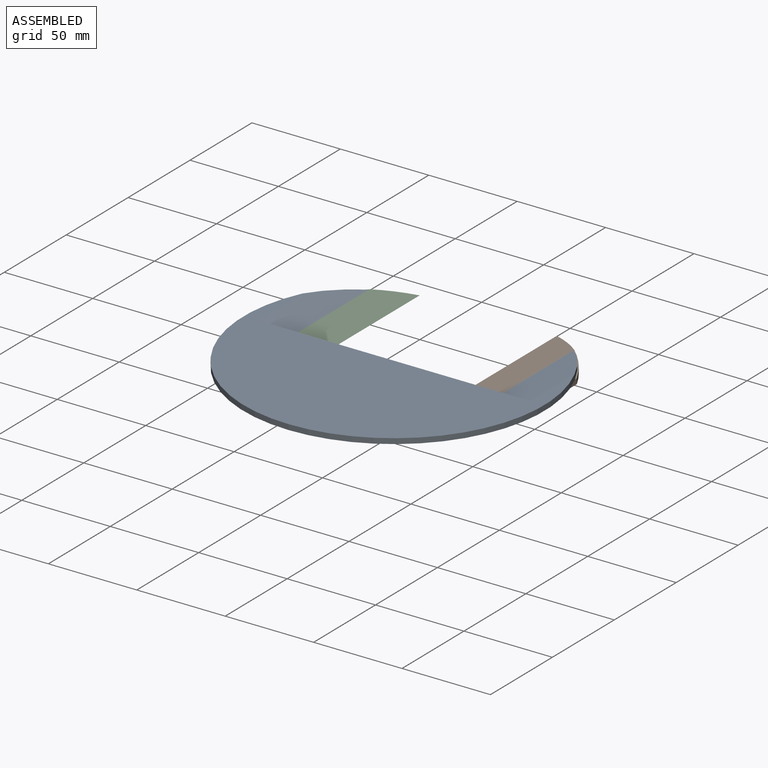
[diagram: assembled view]
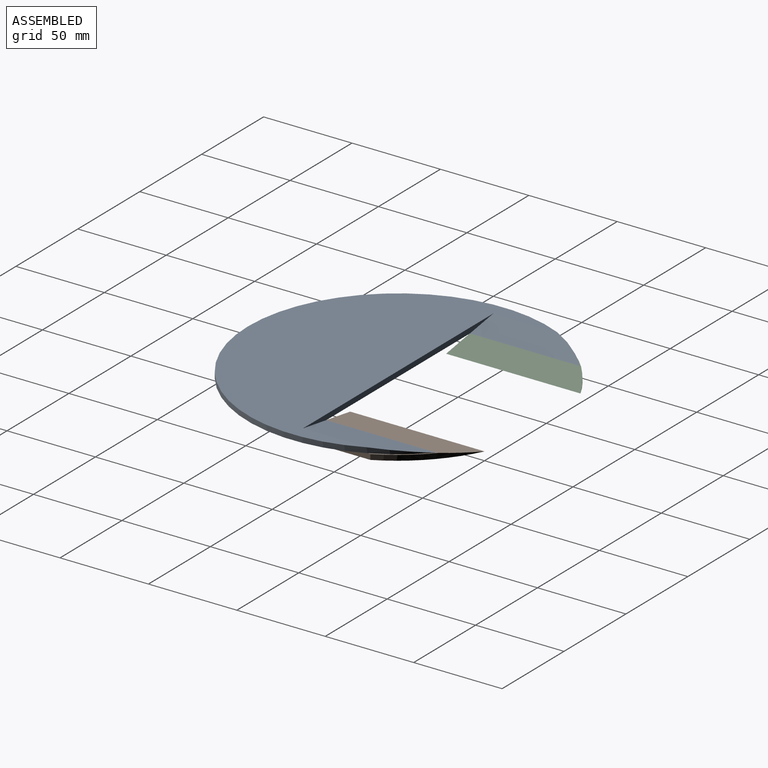
[diagram: assembled view, second angle]
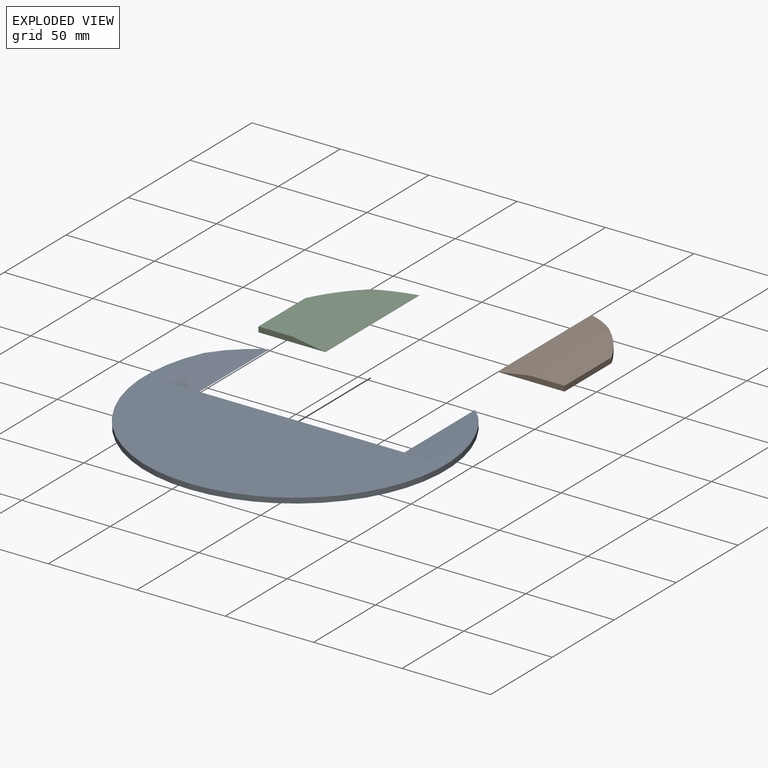
[diagram: exploded view]
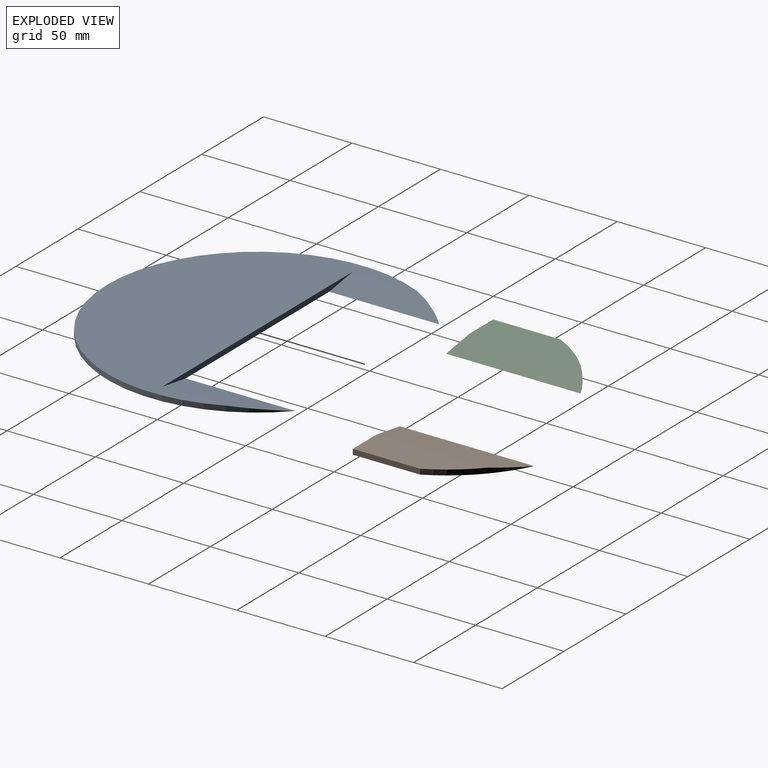
[diagram: exploded view, second angle]
ASSEMBLY  parts=3 mates=4
PART A: 6 faces, bbox 170x147.1x3 mm
  f0: cylinder r=85mm len=170mm, axis (0,0,-1), area 1130.3mm2, adj f1,f2,f4,f5
  f1: plane 170x121mm, normal (0,0,1), area 11736.8mm2, adj f0,f3,f4,f5
  f2: plane 170x147.14mm, normal (0,0,-1), area 13668.3mm2, adj f0,f3,f4,f5
  f3: plane 154x3mm, normal (0,1,0), area 405mm2, adj f1,f2,f4,f5
  f4: plane 62.14x19mm, normal (-0.16,0,0.99), area 977.7mm2, adj f0,f1,f2,f3
  f5: plane 62.14x19mm, normal (0.16,0,0.99), area 977.7mm2, adj f0,f1,f2,f3
PART B: 6 faces, bbox 38x76x3 mm
  f0: plane 38.07x3mm, normal (-1,0,0), area 114.2mm2, adj f1,f2,f4,f5
  f1: plane 76.03x38mm, normal (0,0,1), area 2324.6mm2, adj f0,f2,f3,f5
  f2: plane 38x3mm, normal (0,-1,0), area 85.5mm2, adj f0,f1,f3,f4
  f3: plane 76.03x19mm, normal (0.16,0,-0.99), area 1349.9mm2, adj f1,f2,f4,f5
  f4: plane 63.06x19mm, normal (0,0,-1), area 991.3mm2, adj f0,f2,f3,f5
  f5: cylinder r=85mm len=38mm, axis (0,0,1), area 130.4mm2, adj f0,f1,f3,f4
PART C: 6 faces, bbox 38x76x3 mm
  f0: plane 38.07x3mm, normal (1,0,0), area 114.2mm2, adj f1,f2,f4,f5
  f1: plane 76.03x38mm, normal (0,0,1), area 2324.6mm2, adj f0,f2,f3,f5
  f2: plane 38x3mm, normal (0,-1,0), area 85.5mm2, adj f0,f1,f3,f4
  f3: plane 76.03x19mm, normal (-0.16,0,-0.99), area 1349.9mm2, adj f1,f2,f4,f5
  f4: plane 63.06x19mm, normal (0,0,-1), area 991.3mm2, adj f0,f2,f3,f5
  f5: cylinder r=85mm len=38mm, axis (0,0,1), area 130.4mm2, adj f0,f1,f3,f4
PLACE A t=(-70.44,136.89,9)mm
PLACE B rot(axis=(0,1,0),180deg) t=(-12.67,221.89,12)mm
PLACE C rot(axis=(0,1,0),180deg) t=(-128.11,221.89,12)mm
MATE planar C.f4 <-> A.f2  axis (0,0,1) through (-147.11,174.96,9)mm
MATE parallel C.f2 <-> A.f3  axis (0,-1,0) through (-132.33,136.89,7.33)mm
MATE parallel B.f2 <-> A.f3  axis (0,-1,0) through (-8.44,136.89,7.33)mm
MATE planar B.f4 <-> A.f2  axis (0,0,1) through (-3.91,163.46,9)mm
